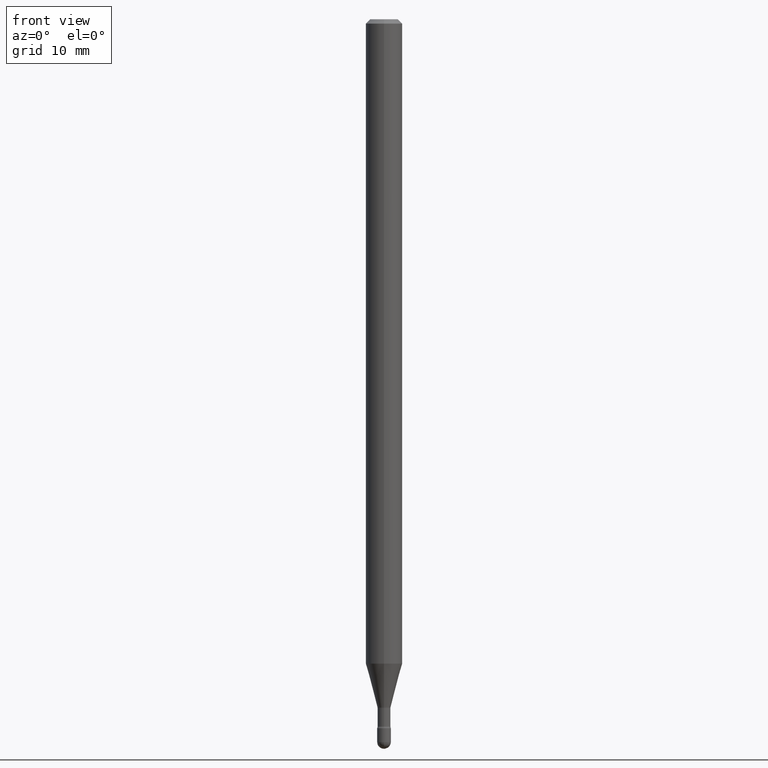
[diagram: clean part render]
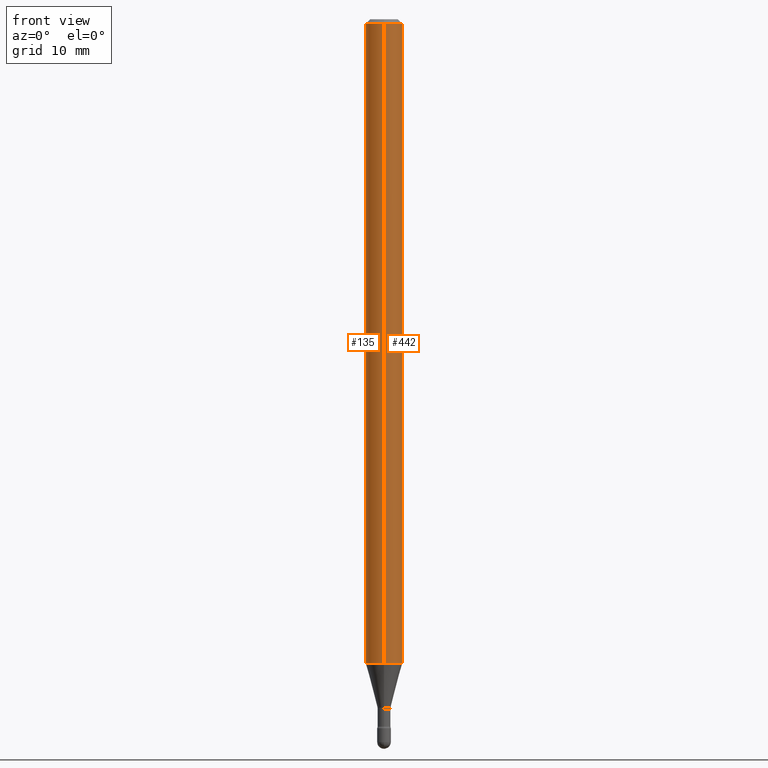
[diagram: same view with one multi-face feature highlighted, each face labeled with its STEP entity id]
A machine part, front view. The highlighted faces form ONE feature: a constant-radius fillet chain: 2 tangent blend faces with common blend radius 1.5875 mm. The faces share edges in the B-rep.
Their STEP definitions:
[1] entity #135 (Cylinder):
#3 = EDGE_LOOP ( 'NONE', ( #441, #417, #334, #363 ) ) ;
#5 = AXIS2_PLACEMENT_3D ( 'NONE', #219, #269, #136 ) ;
#25 = VERTEX_POINT ( 'NONE', #99 ) ;
#47 = CARTESIAN_POINT ( 'NONE',  ( -1.169113584055446105E-44, 1.669184350826100908E-30, 4.780733988912460139E-16 ) ) ;
#55 = CARTESIAN_POINT ( 'NONE',  ( -4.364351673553912750E-16, -0.06250000000000005551, -0.01499999999999986587 ) ) ;
#58 = DIRECTION ( 'NONE',  ( -2.445456806742389886E-29, 3.491498522728124281E-15, 1.000000000000000000 ) ) ;
#75 = EDGE_CURVE ( 'NONE', #420, #25, #271, .T. ) ;
#87 = FACE_OUTER_BOUND ( 'NONE', #3, .T. ) ;
#92 = CYLINDRICAL_SURFACE ( 'NONE', #298, 0.06250000000000000000 ) ;
#99 = CARTESIAN_POINT ( 'NONE',  ( 4.440892098501169490E-16, 0.06249999999999995837, -0.01500000000000030129 ) ) ;
#109 = VECTOR ( 'NONE', #58, 39.37007874015748143 ) ;
#123 = DIRECTION ( 'NONE',  ( -6.982962677686265922E-15, -1.000000000000000000, 3.483106191921935554E-15 ) ) ;
#127 = CARTESIAN_POINT ( 'NONE',  ( 4.440892098501163573E-16, 0.06249999999999226313, -2.208225147374218267 ) ) ;
#135 = ADVANCED_FACE ( 'NONE', ( #87 ), #92, .T. ) ;
#136 = DIRECTION ( 'NONE',  ( -6.982962677686265922E-15, -1.000000000000000000, 4.370956789862821150E-15 ) ) ;
#216 = EDGE_CURVE ( 'NONE', #420, #230, #238, .T. ) ;
#219 = CARTESIAN_POINT ( 'NONE',  ( 5.400119217465999083E-29, -7.710014839908176533E-15, -2.208225147374217823 ) ) ;
#221 = CARTESIAN_POINT ( 'NONE',  ( -4.364351673553378297E-16, -0.06250000000000772993, -2.208225147374217823 ) ) ;
#230 = VERTEX_POINT ( 'NONE', #221 ) ;
#238 = CIRCLE ( 'NONE', #5, 0.06250000000000000000 ) ;
#269 = DIRECTION ( 'NONE',  ( -2.445456806742390166E-29, 3.491498522728124281E-15, 1.000000000000000000 ) ) ;
#271 = LINE ( 'NONE', #444, #109 ) ;
#284 = LINE ( 'NONE', #450, #537 ) ;
#298 = AXIS2_PLACEMENT_3D ( 'NONE', #47, #310, #427 ) ;
#310 = DIRECTION ( 'NONE',  ( -2.445456806742390166E-29, 3.491498522728124281E-15, 1.000000000000000000 ) ) ;
#325 = CARTESIAN_POINT ( 'NONE',  ( 3.668185210113605428E-31, -5.237247784092215166E-17, -0.01500000000000008271 ) ) ;
#334 = ORIENTED_EDGE ( 'NONE', *, *, #380, .T. ) ;
#363 = ORIENTED_EDGE ( 'NONE', *, *, #371, .F. ) ;
#371 = EDGE_CURVE ( 'NONE', #25, #531, #416, .T. ) ;
#380 = EDGE_CURVE ( 'NONE', #230, #531, #284, .T. ) ;
#396 = AXIS2_PLACEMENT_3D ( 'NONE', #325, #513, #123 ) ;
#416 = CIRCLE ( 'NONE', #396, 0.06250000000000000000 ) ;
#417 = ORIENTED_EDGE ( 'NONE', *, *, #216, .T. ) ;
#420 = VERTEX_POINT ( 'NONE', #127 ) ;
#427 = DIRECTION ( 'NONE',  ( -6.982962677686265922E-15, -1.000000000000000000, 3.491498522728124676E-15 ) ) ;
#441 = ORIENTED_EDGE ( 'NONE', *, *, #75, .F. ) ;
#444 = CARTESIAN_POINT ( 'NONE',  ( 4.440892098500625669E-16, 0.06250000000000000000, 2.598547412207382957E-16 ) ) ;
#450 = CARTESIAN_POINT ( 'NONE',  ( -4.364351673553916201E-16, -0.06250000000000000000, 6.962920565617538308E-16 ) ) ;
#513 = DIRECTION ( 'NONE',  ( -2.445456806742390166E-29, 3.491498522728124281E-15, 1.000000000000000000 ) ) ;
#531 = VERTEX_POINT ( 'NONE', #55 ) ;
#537 = VECTOR ( 'NONE', #558, 39.37007874015748143 ) ;
#558 = DIRECTION ( 'NONE',  ( -2.445456806742389886E-29, 3.491498522728124281E-15, 1.000000000000000000 ) ) ;
[2] entity #442 (Cylinder):
#25 = VERTEX_POINT ( 'NONE', #99 ) ;
#55 = CARTESIAN_POINT ( 'NONE',  ( -4.364351673553912750E-16, -0.06250000000000005551, -0.01499999999999986587 ) ) ;
#58 = DIRECTION ( 'NONE',  ( -2.445456806742389886E-29, 3.491498522728124281E-15, 1.000000000000000000 ) ) ;
#62 = ORIENTED_EDGE ( 'NONE', *, *, #75, .T. ) ;
#72 = ORIENTED_EDGE ( 'NONE', *, *, #514, .F. ) ;
#75 = EDGE_CURVE ( 'NONE', #420, #25, #271, .T. ) ;
#99 = CARTESIAN_POINT ( 'NONE',  ( 4.440892098501169490E-16, 0.06249999999999995837, -0.01500000000000030129 ) ) ;
#109 = VECTOR ( 'NONE', #58, 39.37007874015748143 ) ;
#122 = CARTESIAN_POINT ( 'NONE',  ( -1.169113584055446105E-44, 1.669184350826100908E-30, 4.780733988912460139E-16 ) ) ;
#127 = CARTESIAN_POINT ( 'NONE',  ( 4.440892098501163573E-16, 0.06249999999999226313, -2.208225147374218267 ) ) ;
#156 = DIRECTION ( 'NONE',  ( -6.982962677686265922E-15, -1.000000000000000000, 4.370956789862821150E-15 ) ) ;
#158 = ORIENTED_EDGE ( 'NONE', *, *, #349, .T. ) ;
#181 = FACE_OUTER_BOUND ( 'NONE', #373, .T. ) ;
#207 = CARTESIAN_POINT ( 'NONE',  ( 5.400119217465999083E-29, -7.710014839908176533E-15, -2.208225147374217823 ) ) ;
#221 = CARTESIAN_POINT ( 'NONE',  ( -4.364351673553378297E-16, -0.06250000000000772993, -2.208225147374217823 ) ) ;
#230 = VERTEX_POINT ( 'NONE', #221 ) ;
#239 = AXIS2_PLACEMENT_3D ( 'NONE', #207, #367, #156 ) ;
#271 = LINE ( 'NONE', #444, #109 ) ;
#284 = LINE ( 'NONE', #450, #537 ) ;
#299 = AXIS2_PLACEMENT_3D ( 'NONE', #122, #462, #347 ) ;
#324 = CIRCLE ( 'NONE', #239, 0.06250000000000000000 ) ;
#347 = DIRECTION ( 'NONE',  ( -6.982962677686265922E-15, -1.000000000000000000, 3.491498522728124676E-15 ) ) ;
#349 = EDGE_CURVE ( 'NONE', #230, #420, #324, .T. ) ;
#350 = CYLINDRICAL_SURFACE ( 'NONE', #299, 0.06250000000000000000 ) ;
#354 = CARTESIAN_POINT ( 'NONE',  ( 3.668185210113605428E-31, -5.237247784092215166E-17, -0.01500000000000008271 ) ) ;
#367 = DIRECTION ( 'NONE',  ( -2.445456806742390166E-29, 3.491498522728124281E-15, 1.000000000000000000 ) ) ;
#373 = EDGE_LOOP ( 'NONE', ( #158, #62, #72, #500 ) ) ;
#380 = EDGE_CURVE ( 'NONE', #230, #531, #284, .T. ) ;
#399 = DIRECTION ( 'NONE',  ( -2.445456806742390166E-29, 3.491498522728124281E-15, 1.000000000000000000 ) ) ;
#420 = VERTEX_POINT ( 'NONE', #127 ) ;
#431 = CIRCLE ( 'NONE', #447, 0.06250000000000000000 ) ;
#437 = DIRECTION ( 'NONE',  ( -6.982962677686265922E-15, -1.000000000000000000, 3.483106191921935554E-15 ) ) ;
#442 = ADVANCED_FACE ( 'NONE', ( #181 ), #350, .T. ) ;
#444 = CARTESIAN_POINT ( 'NONE',  ( 4.440892098500625669E-16, 0.06250000000000000000, 2.598547412207382957E-16 ) ) ;
#447 = AXIS2_PLACEMENT_3D ( 'NONE', #354, #399, #437 ) ;
#450 = CARTESIAN_POINT ( 'NONE',  ( -4.364351673553916201E-16, -0.06250000000000000000, 6.962920565617538308E-16 ) ) ;
#462 = DIRECTION ( 'NONE',  ( -2.445456806742390166E-29, 3.491498522728124281E-15, 1.000000000000000000 ) ) ;
#500 = ORIENTED_EDGE ( 'NONE', *, *, #380, .F. ) ;
#514 = EDGE_CURVE ( 'NONE', #531, #25, #431, .T. ) ;
#531 = VERTEX_POINT ( 'NONE', #55 ) ;
#537 = VECTOR ( 'NONE', #558, 39.37007874015748143 ) ;
#558 = DIRECTION ( 'NONE',  ( -2.445456806742389886E-29, 3.491498522728124281E-15, 1.000000000000000000 ) ) ;